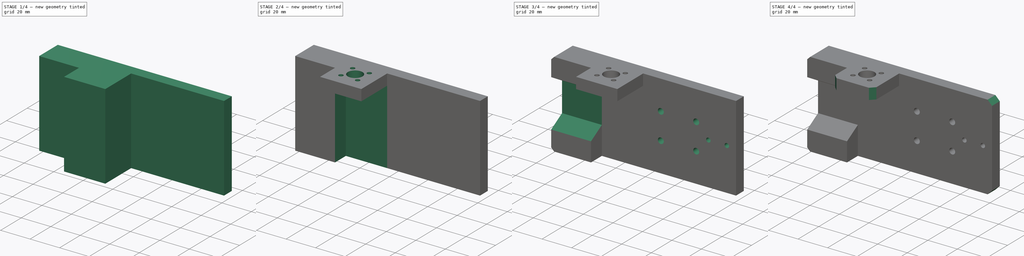
[diagram: build sequence overview — one tinted view per stage of 4, left to right]
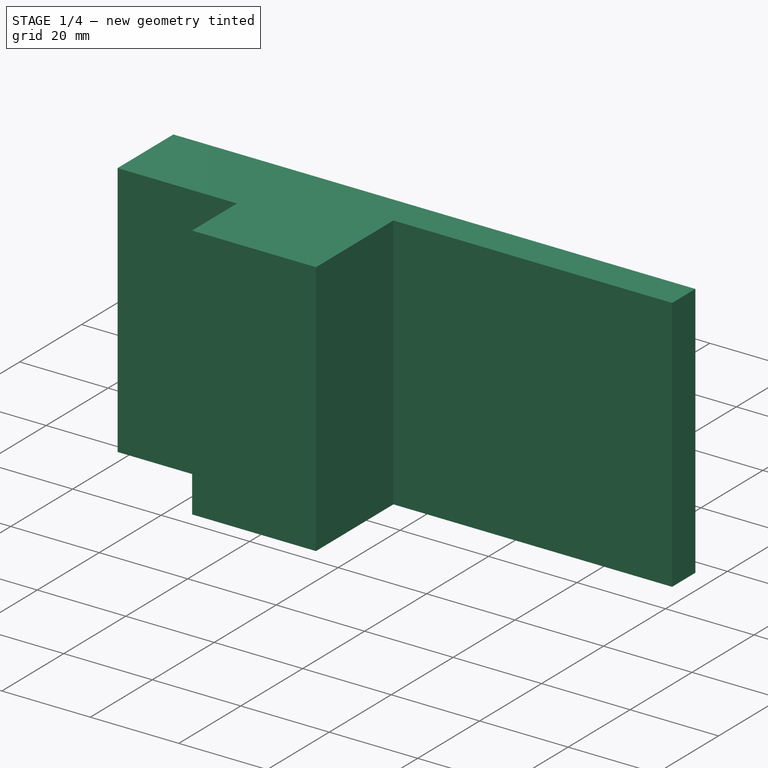
[diagram: stage 1 of 4 — iso view after this stage's code; geometry added in this stage tinted green]
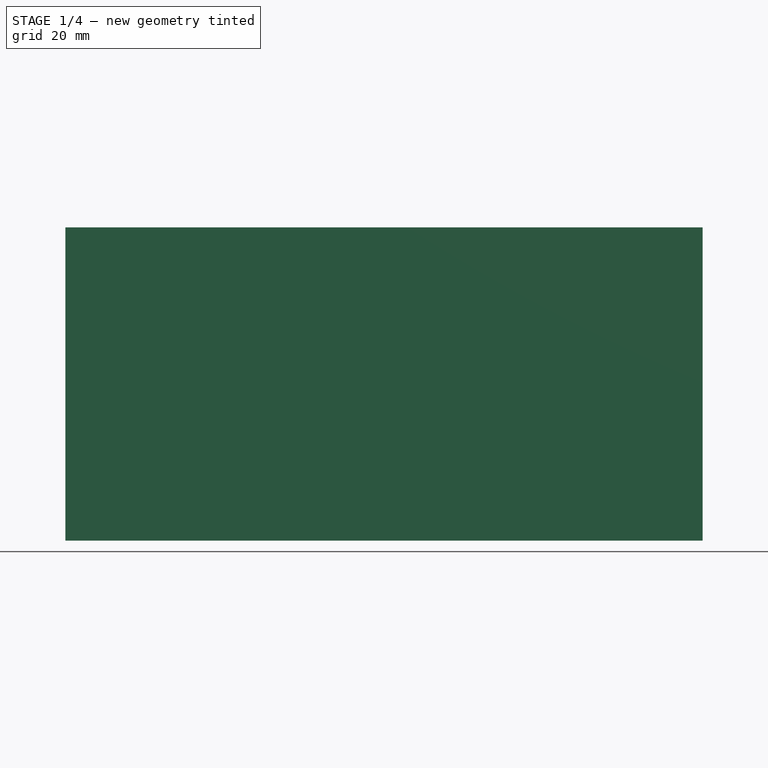
[diagram: stage 1 of 4 — front view after this stage's code; geometry added in this stage tinted green]
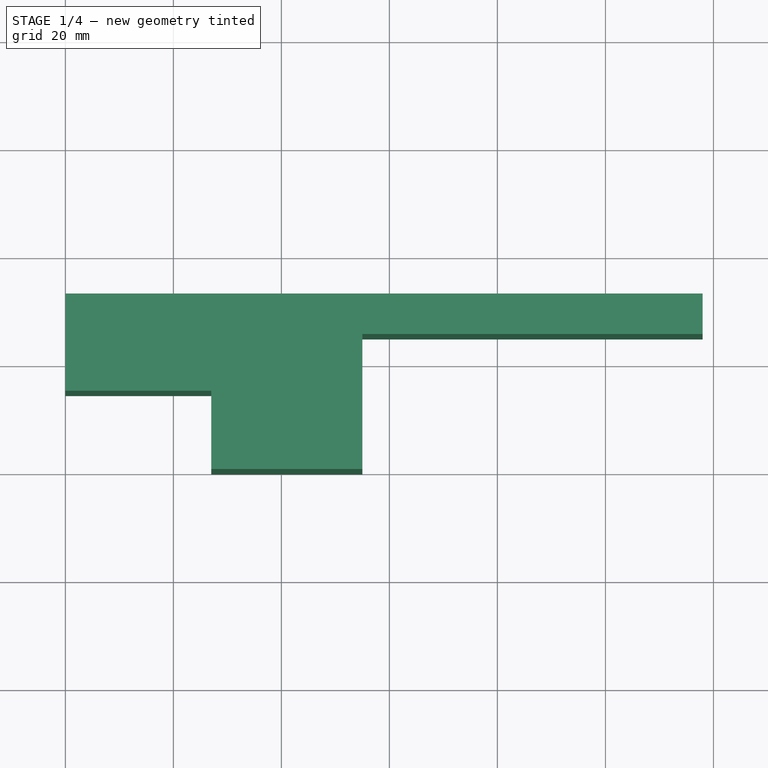
[diagram: stage 1 of 4 — top view after this stage's code; geometry added in this stage tinted green]
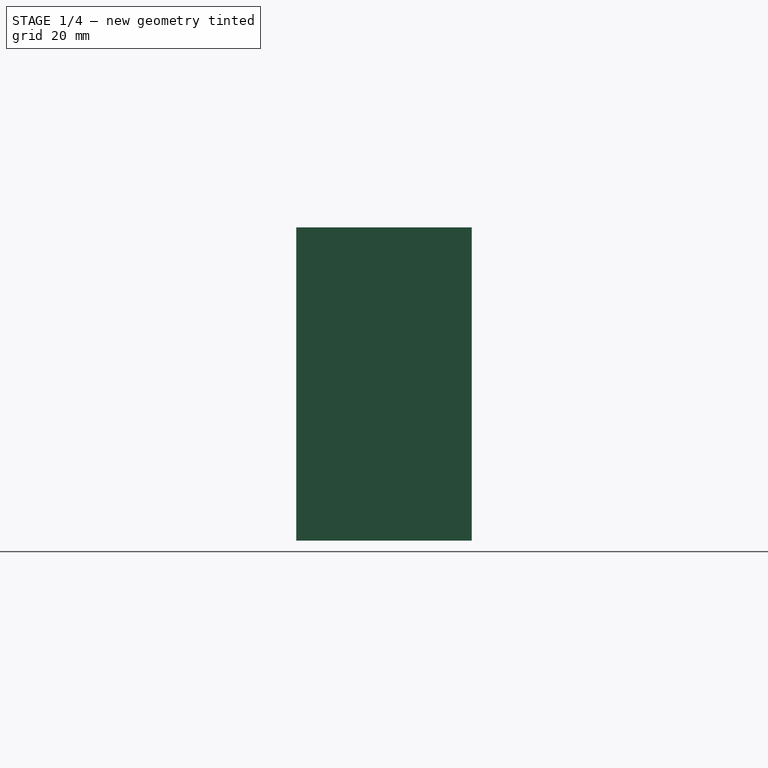
[diagram: stage 1 of 4 — right view after this stage's code; geometry added in this stage tinted green]
FCSTD DOCUMENT  (FreeCAD 0.18R14555 (Git shallow))
Label: bracket-right
License: All rights reserved
LicenseURL: http://en.wikipedia.org/wiki/All_rights_reserved
objects: Sketcher::SketchObject×6, PartDesign::Pocket×5, PartDesign::Chamfer×3, PartDesign::Pad×1, PartDesign::Body×1
note: 22 computed .brp shape members not serialized (recipe doc carries the construction recipe); baked Part::Feature solids carry a one-line shape summary decoded from their .brp

FEATURE [Sketcher::SketchObject] Sketch
  MapMode = 5
  Support = -> [XY_Plane]
  sketch-geometry (34):
    g0: LineSegment [constr] StartX=-15 StartY=27.5 StartZ=0 EndX=25 EndY=27.5 EndZ=0
    g1: LineSegment [constr] StartX=25 StartY=27.5 StartZ=0 EndX=25 EndY=19.5 EndZ=0
    g2: LineSegment [constr] StartX=25 StartY=19.5 StartZ=0 EndX=-15 EndY=19.5 EndZ=0
    g3: LineSegment [constr] StartX=-15 StartY=19.5 StartZ=0 EndX=-15 EndY=27.5 EndZ=0
    g4: LineSegment [constr] StartX=62 StartY=25 StartZ=0 EndX=96 EndY=25 EndZ=0
    g5: LineSegment [constr] StartX=96 StartY=25 StartZ=0 EndX=96 EndY=3 EndZ=0
    g6: LineSegment [constr] StartX=96 StartY=3 StartZ=0 EndX=62 EndY=3 EndZ=0
    g7: LineSegment [constr] StartX=62 StartY=3 StartZ=0 EndX=62 EndY=25 EndZ=0
    g8: LineSegment [constr] StartX=30 StartY=25 StartZ=0 EndX=52 EndY=25 EndZ=0
    g9: LineSegment [constr] StartX=52 StartY=25 StartZ=0 EndX=52 EndY=3 EndZ=0
    g10: LineSegment [constr] StartX=52 StartY=3 StartZ=0 EndX=30 EndY=3 EndZ=0
    g11: LineSegment [constr] StartX=30 StartY=3 StartZ=0 EndX=30 EndY=25 EndZ=0
    g12: LineSegment [constr] StartX=96 StartY=57.5 StartZ=0 EndX=115 EndY=57.5 EndZ=0
    g13: LineSegment [constr] StartX=115 StartY=57.5 StartZ=0 EndX=115 EndY=32.5 EndZ=0
    g14: LineSegment [constr] StartX=115 StartY=32.5 StartZ=0 EndX=96 EndY=32.5 EndZ=0
    g15: LineSegment [constr] StartX=96 StartY=32.5 StartZ=0 EndX=96 EndY=57.5 EndZ=0
    g16: LineSegment StartX=0 StartY=32.5 StartZ=0 EndX=0 EndY=14.5 EndZ=0
    g17: LineSegment StartX=0 StartY=14.5 StartZ=0 EndX=27 EndY=14.5 EndZ=0
    g18: LineSegment StartX=27 StartY=14.5 StartZ=0 EndX=27 EndY=0 EndZ=0
    g19: LineSegment StartX=27 StartY=0 StartZ=0 EndX=55 EndY=0 EndZ=0
    g20: LineSegment StartX=55 StartY=0 StartZ=0 EndX=55 EndY=25 EndZ=0
    g21: LineSegment StartX=55 StartY=25 StartZ=0 EndX=118 EndY=25 EndZ=0
    g22: LineSegment StartX=118 StartY=25 StartZ=0 EndX=118 EndY=32.5 EndZ=0
    g23: LineSegment StartX=118 StartY=32.5 StartZ=0 EndX=0 EndY=32.5 EndZ=0
    g24: LineSegment [constr] StartX=30 StartY=25 StartZ=0 EndX=52 EndY=3 EndZ=0
    g25: LineSegment [constr] StartX=30 StartY=3 StartZ=0 EndX=52 EndY=25 EndZ=0
    g26: LineSegment [constr] StartX=62 StartY=25 StartZ=0 EndX=96 EndY=3 EndZ=0
    g27: LineSegment [constr] StartX=96 StartY=25 StartZ=0 EndX=62 EndY=3 EndZ=0
    g28: LineSegment [constr] StartX=79 StartY=14 StartZ=0 EndX=41 EndY=14 EndZ=0
    g29: LineSegment [constr] StartX=55 StartY=0 StartZ=0 EndX=52 EndY=3 EndZ=0
    g30: LineSegment [constr] StartX=27 StartY=0 StartZ=0 EndX=30 EndY=3 EndZ=0
    g31: LineSegment [constr] StartX=0 StartY=14.5 StartZ=0 EndX=0 EndY=0 EndZ=0
    g32: LineSegment [constr] StartX=27 StartY=0 StartZ=0 EndX=0 EndY=0 EndZ=0
    g33: LineSegment [constr] StartX=96 StartY=25 StartZ=0 EndX=96 EndY=32.5 EndZ=0
  constraints (94):
    c: Coincident(g0,g1)
    c: Coincident(g1,g2)
    c: Coincident(g2,g3)
    c: Coincident(g3,g0)
    c: Horizontal(g0)
    c: Horizontal(g2)
    c: Vertical(g1)
    c: Vertical(g3)
    c: DistanceY(g3,g3) = 8
    c: DistanceX(g0,g0) = 40
    c: Coincident(g4,g5)
    c: Coincident(g5,g6)
    c: Coincident(g6,g7)
    c: Coincident(g7,g4)
    c: Horizontal(g4)
    c: Horizontal(g6)
    c: Vertical(g5)
    c: Vertical(g7)
    c: DistanceY(g7,g7) = 22
    c: DistanceX(g4,g4) = 34
    c: Coincident(g8,g9)
    c: Coincident(g9,g10)
    c: Coincident(g10,g11)
    c: Coincident(g11,g8)
    c: Horizontal(g8)
    c: Horizontal(g10)
    c: Vertical(g9)
    c: Vertical(g11)
    c: Equal(g11,g10)
    c: DistanceX(g10,g10) = 22
    c: Coincident(g12,g13)
    c: Coincident(g13,g14)
    c: Coincident(g14,g15)
    c: Coincident(g15,g12)
    c: Horizontal(g12)
    c: Horizontal(g14)
    c: Vertical(g13)
    c: Vertical(g15)
    c: DistanceY(g13,g13) = 25
    c: Vertical(g16)
    c: Coincident(g16,g17)
    c: Horizontal(g17)
    c: Coincident(g17,g18)
    c: Vertical(g18)
    c: Coincident(g18,g19)
    c: Horizontal(g19)
    c: Coincident(g19,g20)
    c: Vertical(g20)
    c: Coincident(g20,g21)
    c: Horizontal(g21)
    c: Coincident(g21,g22)
    c: Vertical(g22)
    c: Coincident(g22,g23)
    c: Coincident(g23,g16)
    c: Horizontal(g23)
    c: DistanceX(g16,g0) = 25
    c: DistanceX(g0,g8) = 5
    c: Coincident(g24,g8)
    c: Coincident(g24,g9)
    c: Coincident(g25,g10)
    c: Coincident(g25,g8)
    c: Coincident(g26,g4)
    c: Coincident(g26,g5)
    c: Coincident(g27,g4)
    c: Coincident(g27,g6)
    c: PointOnObject(g28,g27)
    c: PointOnObject(g28,g25)
    c: Horizontal(g28)
    c: PointOnObject(g28,g24)
    c: PointOnObject(g28,g26)
    c: PointOnObject(g4,g21)
    c: Coincident(g29,g19)
    c: Coincident(g29,g9)
    c: Coincident(g30,g18)
    c: Coincident(g30,g10)
    c: Equal(g30,g29)
    c: DistanceX(g9,g19) = 3
    c: DistanceY(g19,g9) = 3
    c: DistanceX(g28,g28) = 38
    c: DistanceY(g16,g1) = 5
    c: DistanceY(g0,g16) = 5
    c: DistanceY(g22,g22) = 7.5
    c: Coincident(g31,g16)
    c: Vertical(g31)
    c: Coincident(g32,g18)
    c: Coincident(g32,g31)
    c: Horizontal(g32)
    c: Coincident(g31,g-1)
    c: Coincident(g33,g4)
    c: Coincident(g33,g14)
    c: Vertical(g33)
    c: PointOnObject(g14,g23)
    c: DistanceX(g13,g22) = 3
    c: DistanceX(g12,g12) = 19
FEATURE [PartDesign::Pad] Pad
  Length = 58
  Length2 = 100
  Profile = -> Sketch
  Type = 0
FEATURE [Sketcher::SketchObject] Sketch001
  ExternalGeometry = -> [Pad]
  MapMode = 5
  Placement = pos=(0,0,0) rot=(0.57735,-0.57735,-0.57735;2.0944rad)
  Support = -> [Pad]
  sketch-geometry (6):
    g0: Circle CenterX=-23.5 CenterY=49 CenterZ=0 NormalX=0 NormalY=0 NormalZ=1 AngleXU=0 Radius=4
    g1: Circle CenterX=-23.5 CenterY=9 CenterZ=0 NormalX=0 NormalY=0 NormalZ=1 AngleXU=0 Radius=4
    g2: LineSegment [constr] StartX=-32.5 StartY=0 StartZ=0 EndX=-23.5 EndY=9 EndZ=0
    g3: LineSegment [constr] StartX=-23.5 StartY=9 StartZ=0 EndX=-14.5 EndY=0 EndZ=0
    g4: LineSegment [constr] StartX=-23.5 StartY=9 StartZ=0 EndX=-23.5 EndY=49 EndZ=0
    g5: LineSegment [constr] StartX=-23.5 StartY=49 StartZ=0 EndX=-32.5 EndY=58 EndZ=0
  constraints (14):
    c: Coincident(g2,g-3)
    c: Coincident(g2,g1)
    c: Coincident(g3,g1)
    c: Coincident(g3,g-4)
    c: Coincident(g4,g1)
    c: Coincident(g4,g0)
    c: Coincident(g5,g0)
    c: Coincident(g5,g-3)
    c: Equal(g5,g2)
    c: Equal(g2,g3)
    c: Vertical(g4)
    c: Equal(g0,g1)
    c: DistanceY(g4,g4) = 40
    c: Radius(g0) = 4
FEATURE [PartDesign::Pocket] Pocket
  BaseFeature = -> Pad
  Length = 25
  Length2 = 100
  Profile = -> Sketch001
  Type = 0
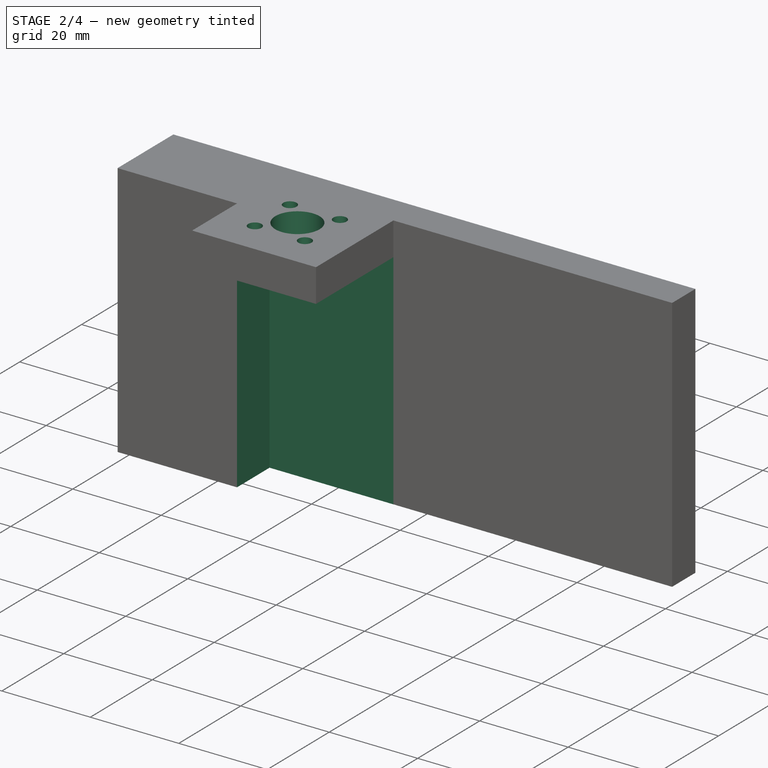
[diagram: stage 2 of 4 — iso view after this stage's code; geometry added in this stage tinted green]
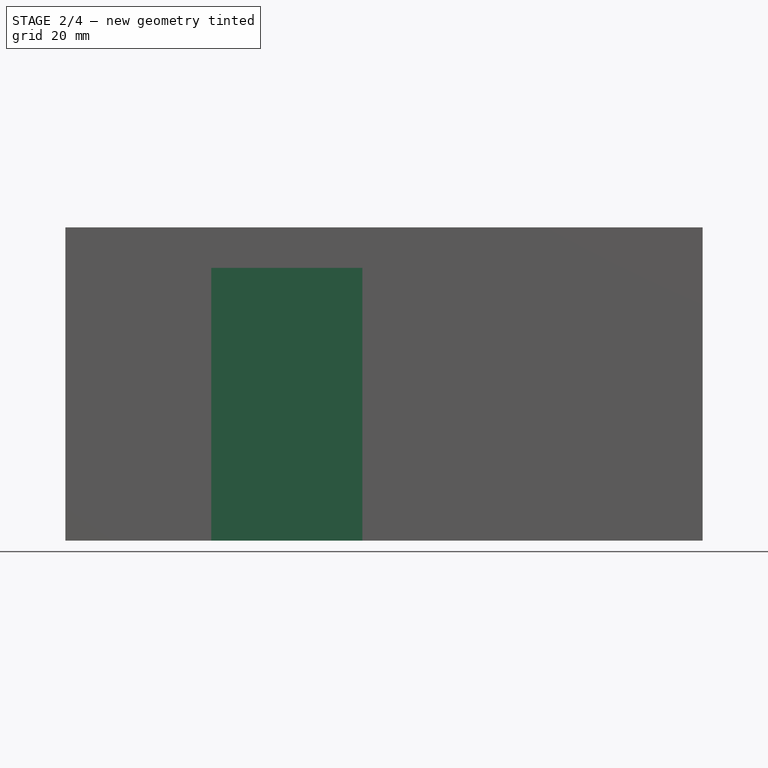
[diagram: stage 2 of 4 — front view after this stage's code; geometry added in this stage tinted green]
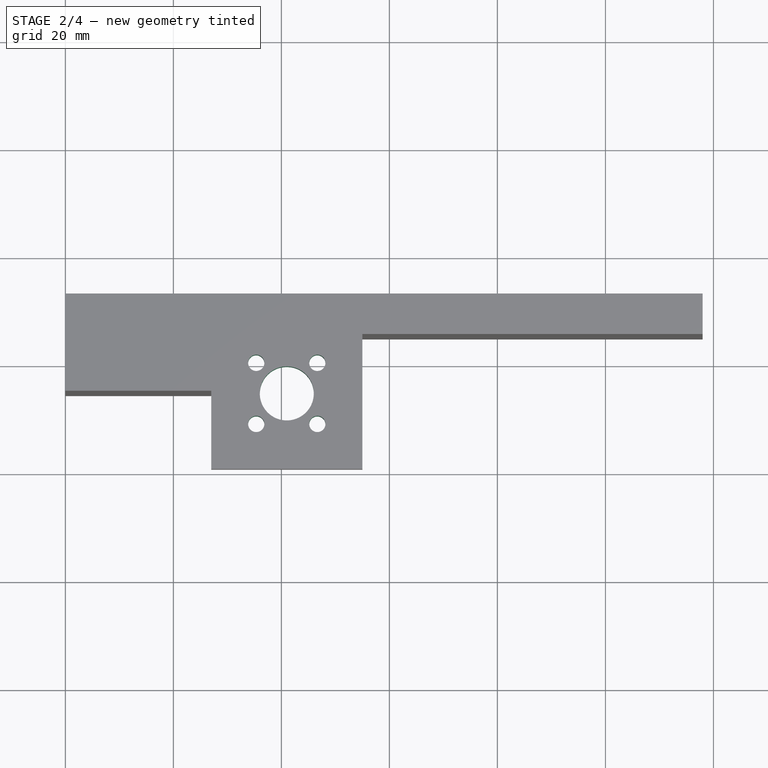
[diagram: stage 2 of 4 — top view after this stage's code; geometry added in this stage tinted green]
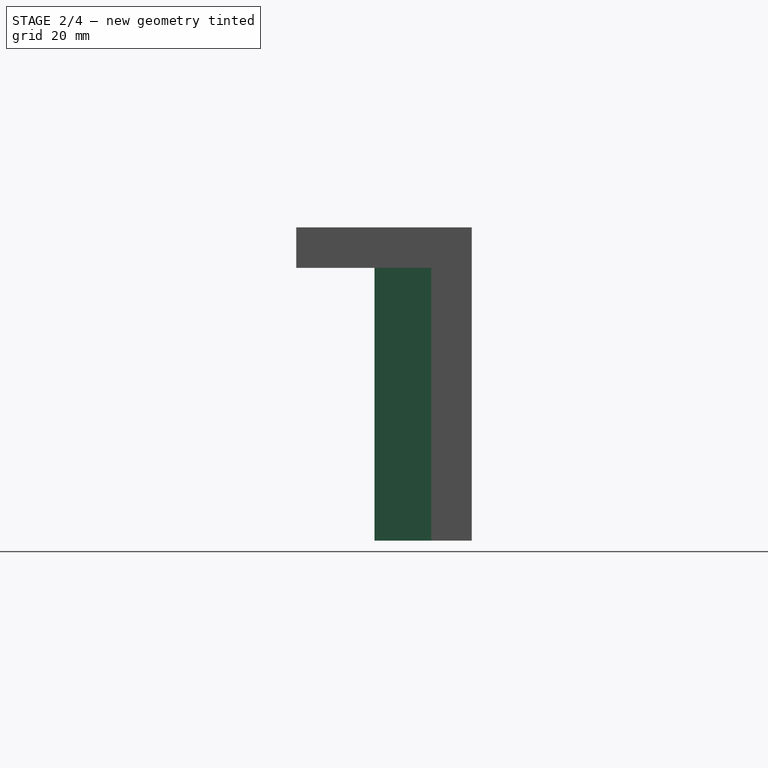
[diagram: stage 2 of 4 — right view after this stage's code; geometry added in this stage tinted green]
FEATURE [Sketcher::SketchObject] Sketch002
  ExternalGeometry = -> [Pocket]
  MapMode = 5
  Placement = pos=(0,0,0) rot=(1,0,0;3.14159rad)
  Support = -> [Pocket]
  sketch-geometry (4):
    g0: LineSegment StartX=27 StartY=0 StartZ=0 EndX=55 EndY=0 EndZ=0
    g1: LineSegment StartX=55 StartY=0 StartZ=0 EndX=55 EndY=-25 EndZ=0
    g2: LineSegment StartX=55 StartY=-25 StartZ=0 EndX=27 EndY=-25 EndZ=0
    g3: LineSegment StartX=27 StartY=-25 StartZ=0 EndX=27 EndY=0 EndZ=0
  constraints (10):
    c: Coincident(g0,g1)
    c: Coincident(g1,g2)
    c: Coincident(g2,g3)
    c: Coincident(g3,g0)
    c: Horizontal(g0)
    c: Horizontal(g2)
    c: Vertical(g1)
    c: Vertical(g3)
    c: Coincident(g0,g-4)
    c: Coincident(g1,g-3)
FEATURE [PartDesign::Pocket] Pocket001
  BaseFeature = -> Pocket
  Length = 50.5
  Length2 = 100
  Profile = -> Sketch002
  Type = 0
FEATURE [Sketcher::SketchObject] Sketch003
  ExternalGeometry = -> [Pocket001]
  MapMode = 5
  Placement = pos=(0,0,58) rot=(0,0,1;0rad)
  Support = -> [Pocket001]
  sketch-geometry (11):
    g0: Circle CenterX=41 CenterY=14 CenterZ=0 NormalX=0 NormalY=0 NormalZ=1 AngleXU=0 Radius=5
    g1: Circle [constr] CenterX=41 CenterY=14 CenterZ=0 NormalX=0 NormalY=0 NormalZ=1 AngleXU=0 Radius=8
    g2: LineSegment [constr] StartX=35.3431 StartY=8.34315 StartZ=0 EndX=35.3431 EndY=19.6569 EndZ=0
    g3: LineSegment [constr] StartX=35.3431 StartY=19.6569 StartZ=0 EndX=46.6569 EndY=19.6569 EndZ=0
    g4: LineSegment [constr] StartX=46.6569 StartY=19.6569 StartZ=0 EndX=46.6569 EndY=8.34315 EndZ=0
    g5: Circle CenterX=35.3431 CenterY=19.6569 CenterZ=0 NormalX=0 NormalY=0 NormalZ=1 AngleXU=0 Radius=1.5
    g6: Circle CenterX=46.6569 CenterY=19.6569 CenterZ=0 NormalX=0 NormalY=0 NormalZ=1 AngleXU=0 Radius=1.5
    g7: Circle CenterX=46.6569 CenterY=8.34315 CenterZ=0 NormalX=0 NormalY=0 NormalZ=1 AngleXU=0 Radius=1.5
    g8: Circle CenterX=35.3431 CenterY=8.34315 CenterZ=0 NormalX=0 NormalY=0 NormalZ=1 AngleXU=0 Radius=1.5
    g9: LineSegment [constr] StartX=27 StartY=0 StartZ=0 EndX=41 EndY=14 EndZ=0
    g10: LineSegment [constr] StartX=41 StartY=14 StartZ=0 EndX=55 EndY=-1.8e-15 EndZ=0
  constraints (27):
    c: Coincident(g1,g0)
    c: Radius(g0) = 5
    c: Radius(g1) = 8
    c: PointOnObject(g2,g1)
    c: PointOnObject(g2,g1)
    c: Vertical(g2)
    c: Coincident(g3,g2)
    c: PointOnObject(g3,g1)
    c: Horizontal(g3)
    c: Coincident(g4,g3)
    c: PointOnObject(g4,g1)
    c: Equal(g2,g3)
    c: Equal(g3,g4)
    c: Coincident(g6,g3)
    c: Coincident(g7,g4)
    c: Coincident(g8,g2)
    c: Equal(g8,g5)
    c: Equal(g5,g6)
    c: Equal(g6,g7)
    c: Radius(g5) = 1.5
    c: Coincident(g5,g2)
    c: Coincident(g9,g-3)
    c: Coincident(g9,g0)
    c: Coincident(g10,g0)
    c: Coincident(g10,g-4)
    c: Equal(g9,g10)
    c: DistanceY(g9,g0) = 14
FEATURE [PartDesign::Pocket] Pocket002
  BaseFeature = -> Pocket001
  Length = 5
  Length2 = 100
  Profile = -> Sketch003
  Type = 1
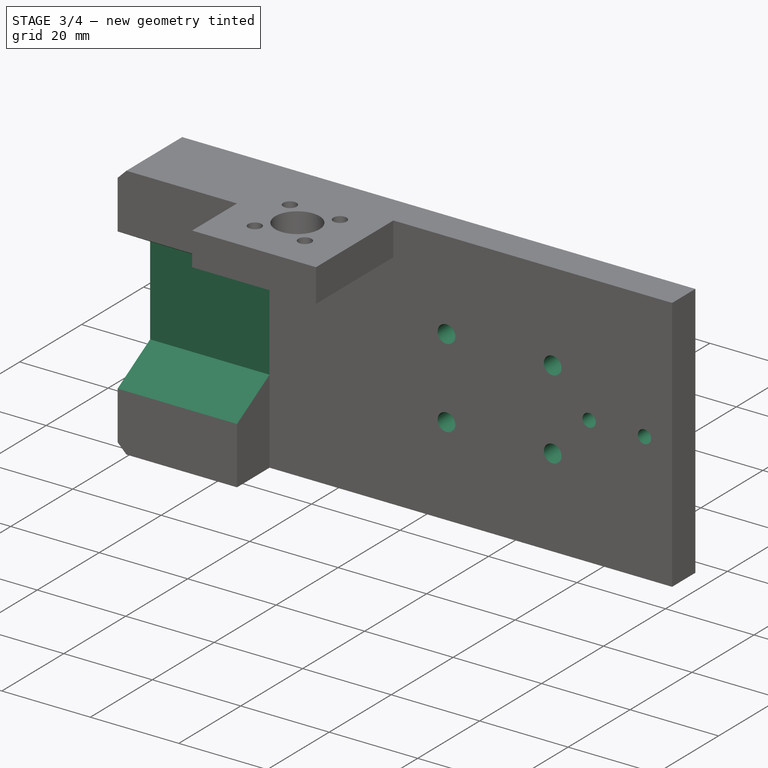
[diagram: stage 3 of 4 — iso view after this stage's code; geometry added in this stage tinted green]
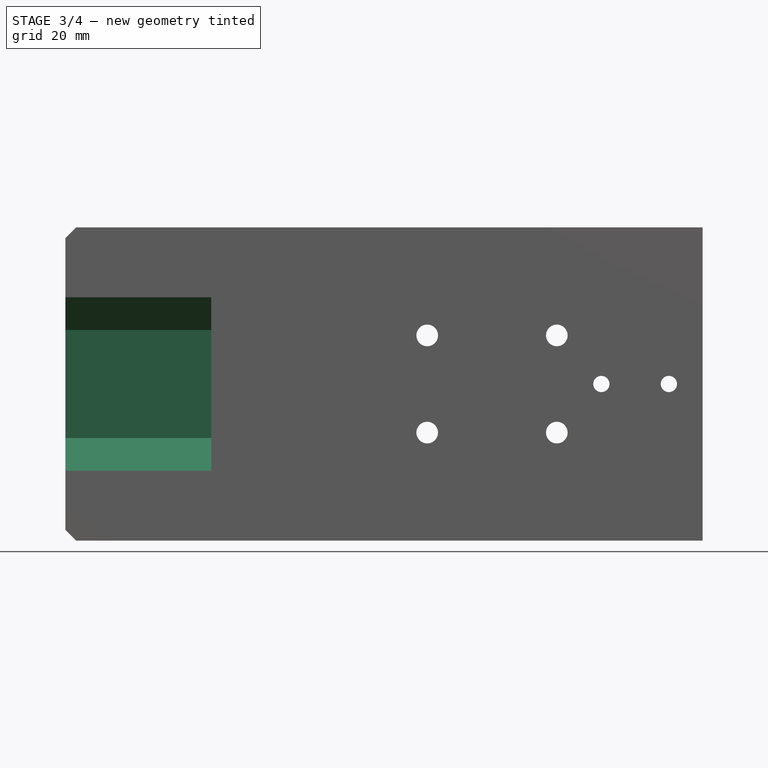
[diagram: stage 3 of 4 — front view after this stage's code; geometry added in this stage tinted green]
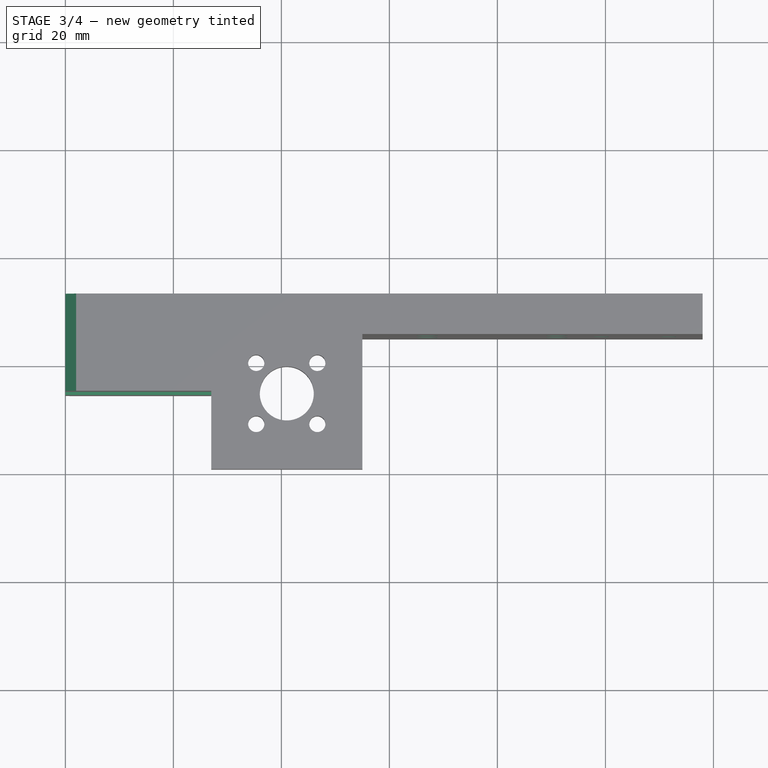
[diagram: stage 3 of 4 — top view after this stage's code; geometry added in this stage tinted green]
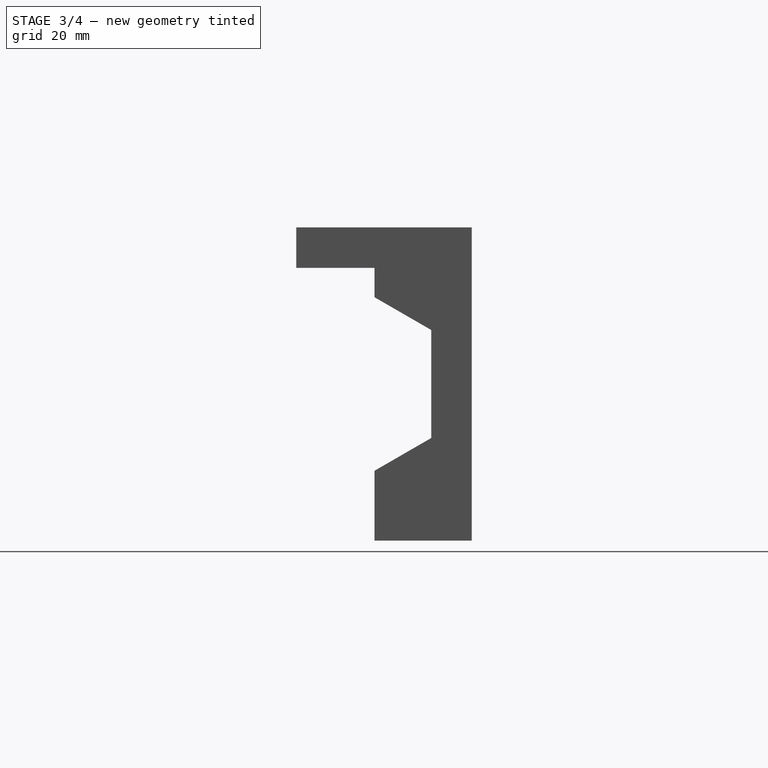
[diagram: stage 3 of 4 — right view after this stage's code; geometry added in this stage tinted green]
FEATURE [Sketcher::SketchObject] Sketch004
  ExternalGeometry = -> [Pocket002]
  MapMode = 5
  Placement = pos=(0,0,0) rot=(0.57735,-0.57735,-0.57735;2.0944rad)
  Support = -> [Pocket002]
  sketch-geometry (6):
    g0: LineSegment StartX=-14.5 StartY=45.0622 StartZ=0 EndX=-14.5 EndY=12.9378 EndZ=0
    g1: LineSegment StartX=-14.5 StartY=12.9378 StartZ=0 EndX=-25 EndY=19 EndZ=0
    g2: LineSegment StartX=-25 StartY=19 StartZ=0 EndX=-25 EndY=39 EndZ=0
    g3: LineSegment StartX=-25 StartY=39 StartZ=0 EndX=-14.5 EndY=45.0622 EndZ=0
    g4: LineSegment [constr] StartX=-14.5 StartY=45.0622 StartZ=0 EndX=-32.5 EndY=58 EndZ=0
    g5: LineSegment [constr] StartX=-14.5 StartY=12.9378 StartZ=0 EndX=-32.5 EndY=1.8e-15 EndZ=0
  constraints (16):
    c: Vertical(g0)
    c: Coincident(g0,g1)
    c: Coincident(g1,g2)
    c: Vertical(g2)
    c: Coincident(g2,g3)
    c: Coincident(g3,g0)
    c: Equal(g3,g1)
    c: DistanceY(g2,g2) = 20
    c: Coincident(g4,g0)
    c: Coincident(g4,g-4)
    c: Coincident(g5,g0)
    c: Coincident(g5,g-4)
    c: Equal(g5,g4)
    c: PointOnObject(g0,g-3)
    c: Angle(g2,g3) = 2.0944
    c: DistanceX(g4,g2) = 7.5
FEATURE [PartDesign::Pocket] Pocket003
  BaseFeature = -> Pocket002
  Length = 0
  Length2 = 100
  Profile = -> Sketch004
  Type = 3
  UpToFace = -> Pocket002 [Face11]
FEATURE [Sketcher::SketchObject] Sketch005
  ExternalGeometry = -> [Pocket003]
  MapMode = 5
  Placement = pos=(0,25,0) rot=(1,0,0;1.5708rad)
  Support = -> [Pocket003]
  sketch-geometry (35):
    g0: LineSegment [constr] StartX=27 StartY=58 StartZ=0 EndX=55 EndY=50.5 EndZ=0
    g1: LineSegment [constr] StartX=55 StartY=58 StartZ=0 EndX=27 EndY=50.5 EndZ=0
    g2: GeomPoint X=41 Y=54.25 Z=0
    g3: LineSegment [constr] StartX=62 StartY=44 StartZ=0 EndX=96 EndY=44 EndZ=0
    g4: LineSegment [constr] StartX=96 StartY=44 StartZ=0 EndX=96 EndY=14 EndZ=0
    g5: LineSegment [constr] StartX=96 StartY=14 StartZ=0 EndX=62 EndY=14 EndZ=0
    g6: LineSegment [constr] StartX=62 StartY=14 StartZ=0 EndX=62 EndY=44 EndZ=0
    g7: LineSegment [constr] StartX=62 StartY=44 StartZ=0 EndX=96 EndY=14 EndZ=0
    g8: LineSegment [constr] StartX=62 StartY=14 StartZ=0 EndX=96 EndY=44 EndZ=0
    g9: GeomPoint X=79 Y=29 Z=0
    g10: LineSegment [constr] StartX=62 StartY=44 StartZ=0 EndX=55 EndY=58 EndZ=0
    g11: LineSegment [constr] StartX=55 StartY=0 StartZ=0 EndX=62 EndY=14 EndZ=0
    g12: Circle CenterX=67 CenterY=38 CenterZ=0 NormalX=0 NormalY=0 NormalZ=1 AngleXU=0 Radius=2
    g13: Circle CenterX=91 CenterY=38 CenterZ=0 NormalX=0 NormalY=0 NormalZ=1 AngleXU=0 Radius=2
    g14: Circle CenterX=91 CenterY=20 CenterZ=0 NormalX=0 NormalY=0 NormalZ=1 AngleXU=0 Radius=2
    g15: Circle CenterX=67 CenterY=20 CenterZ=0 NormalX=0 NormalY=0 NormalZ=1 AngleXU=0 Radius=2
    g16: LineSegment [constr] StartX=67 StartY=20 StartZ=0 EndX=67 EndY=38 EndZ=0
    g17: LineSegment [constr] StartX=67 StartY=38 StartZ=0 EndX=91 EndY=38 EndZ=0
    g18: LineSegment [constr] StartX=91 StartY=38 StartZ=0 EndX=91 EndY=20 EndZ=0
    g19: LineSegment [constr] StartX=67 StartY=20 StartZ=0 EndX=91 EndY=20 EndZ=0
    g20: LineSegment [constr] StartX=67 StartY=38 StartZ=0 EndX=62 EndY=44 EndZ=0
    g21: LineSegment [constr] StartX=67 StartY=20 StartZ=0 EndX=62 EndY=14 EndZ=0
    g22: LineSegment [constr] StartX=91 StartY=38 StartZ=0 EndX=96 EndY=44 EndZ=0
    g23: LineSegment [constr] StartX=96 StartY=41.5 StartZ=0 EndX=115 EndY=41.5 EndZ=0
    g24: LineSegment [constr] StartX=115 StartY=41.5 StartZ=0 EndX=115 EndY=16.5 EndZ=0
    g25: LineSegment [constr] StartX=115 StartY=16.5 StartZ=0 EndX=96 EndY=16.5 EndZ=0
    g26: LineSegment [constr] StartX=96 StartY=16.5 StartZ=0 EndX=96 EndY=41.5 EndZ=0
    g27: LineSegment [constr] StartX=96 StartY=44 StartZ=0 EndX=115 EndY=41.5 EndZ=0
    g28: LineSegment [constr] StartX=96 StartY=14 StartZ=0 EndX=115 EndY=16.5 EndZ=0
    g29: Circle CenterX=99.25 CenterY=29 CenterZ=0 NormalX=0 NormalY=0 NormalZ=1 AngleXU=0 Radius=1.5
    g30: Circle CenterX=111.75 CenterY=29 CenterZ=0 NormalX=0 NormalY=0 NormalZ=1 AngleXU=0 Radius=1.5
    g31: LineSegment [constr] StartX=99.25 StartY=29 StartZ=0 EndX=111.75 EndY=29 EndZ=0
    g32: LineSegment [constr] StartX=96 StartY=41.5 StartZ=0 EndX=99.25 EndY=29 EndZ=0
    g33: LineSegment [constr] StartX=111.75 StartY=29 StartZ=0 EndX=115 EndY=41.5 EndZ=0
    g34: LineSegment [constr] StartX=111.75 StartY=29 StartZ=0 EndX=115 EndY=16.5 EndZ=0
  constraints (84):
    c: Coincident(g0,g-4)
    c: Coincident(g0,g-3)
    c: Coincident(g1,g-3)
    c: Coincident(g1,g-4)
    c: PointOnObject(g2,g0)
    c: PointOnObject(g2,g1)
    c: Coincident(g3,g4)
    c: Coincident(g4,g5)
    c: Coincident(g5,g6)
    c: Coincident(g6,g3)
    c: Horizontal(g3)
    c: Horizontal(g5)
    c: Vertical(g4)
    c: Vertical(g6)
    c: DistanceX(g3,g3) = 34
    c: DistanceY(g6,g6) = 30
    c: Coincident(g7,g3)
    c: Coincident(g7,g4)
    c: Coincident(g8,g5)
    c: Coincident(g8,g3)
    c: PointOnObject(g9,g7)
    c: PointOnObject(g9,g8)
    c: DistanceX(g2,g9) = 38
    c: Coincident(g10,g3)
    c: Coincident(g10,g1)
    c: Coincident(g11,g-5)
    c: Coincident(g11,g5)
    c: Equal(g11,g10)
    c: Coincident(g16,g15)
    c: Coincident(g16,g12)
    c: Coincident(g17,g12)
    c: Horizontal(g17)
    c: Coincident(g18,g13)
    c: Coincident(g18,g14)
    c: Coincident(g17,g13)
    c: Vertical(g18)
    c: Vertical(g16)
    c: Coincident(g19,g15)
    c: Coincident(g19,g14)
    c: Horizontal(g19)
    c: DistanceX(g19,g19) = 24
    c: DistanceY(g18,g18) = 18
    c: Equal(g12,g13)
    c: Equal(g13,g15)
    c: Equal(g15,g14)
    c: Radius(g12) = 2
    c: Coincident(g20,g12)
    c: Coincident(g20,g3)
    c: Coincident(g21,g15)
    c: Coincident(g21,g5)
    c: Coincident(g22,g13)
    c: Coincident(g22,g3)
    c: Equal(g20,g21)
    c: Equal(g21,g22)
    c: Coincident(g23,g24)
    c: Coincident(g24,g25)
    c: Coincident(g25,g26)
    c: Coincident(g26,g23)
    c: Horizontal(g23)
    c: Horizontal(g25)
    c: Vertical(g24)
    c: Vertical(g26)
    c: DistanceX(g23,g23) = 19
    c: PointOnObject(g23,g4)
    c: DistanceY(g24,g24) = 25
    c: Coincident(g27,g3)
    c: Coincident(g27,g23)
    c: Coincident(g28,g4)
    c: Coincident(g28,g24)
    c: Equal(g27,g28)
    c: Coincident(g31,g29)
    c: Coincident(g31,g30)
    c: Horizontal(g31)
    c: Coincident(g32,g23)
    c: Coincident(g32,g29)
    c: Coincident(g33,g30)
    c: Coincident(g33,g23)
    c: Coincident(g34,g30)
    c: Coincident(g34,g24)
    c: Equal(g33,g34)
    c: Equal(g34,g32)
    c: Equal(g29,g30)
    c: Radius(g29) = 1.5
    c: DistanceX(g31,g31) = 12.5
FEATURE [PartDesign::Pocket] Pocket004
  BaseFeature = -> Pocket003
  Length = 0
  Length2 = 100
  Profile = -> Sketch005
  Type = 1
FEATURE [PartDesign::Chamfer] Chamfer
  Base = -> Pocket004 [Edge7,Edge1]
  BaseFeature = -> Pocket004
  Size = 2
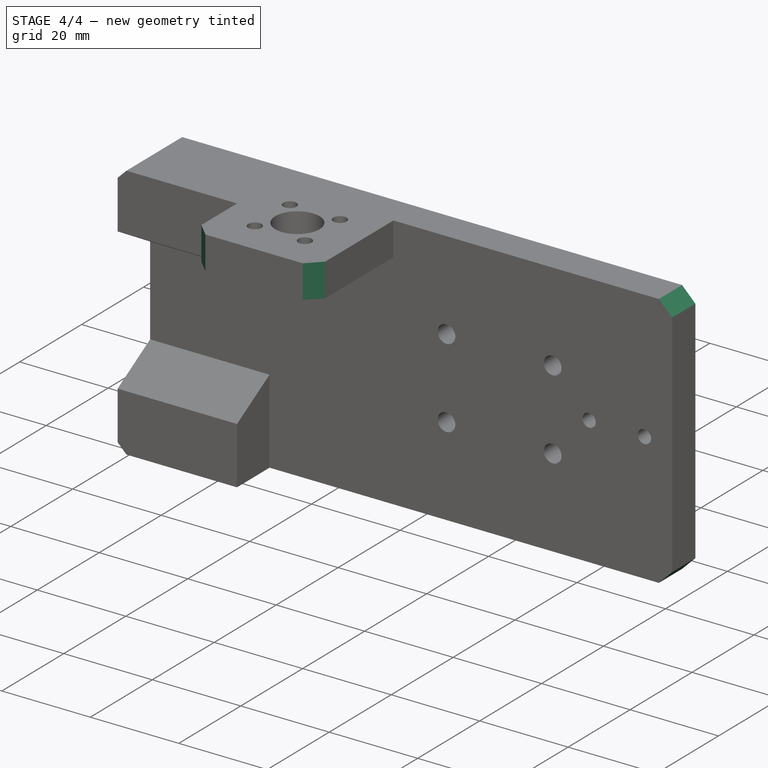
[diagram: stage 4 of 4 — iso view after this stage's code; geometry added in this stage tinted green]
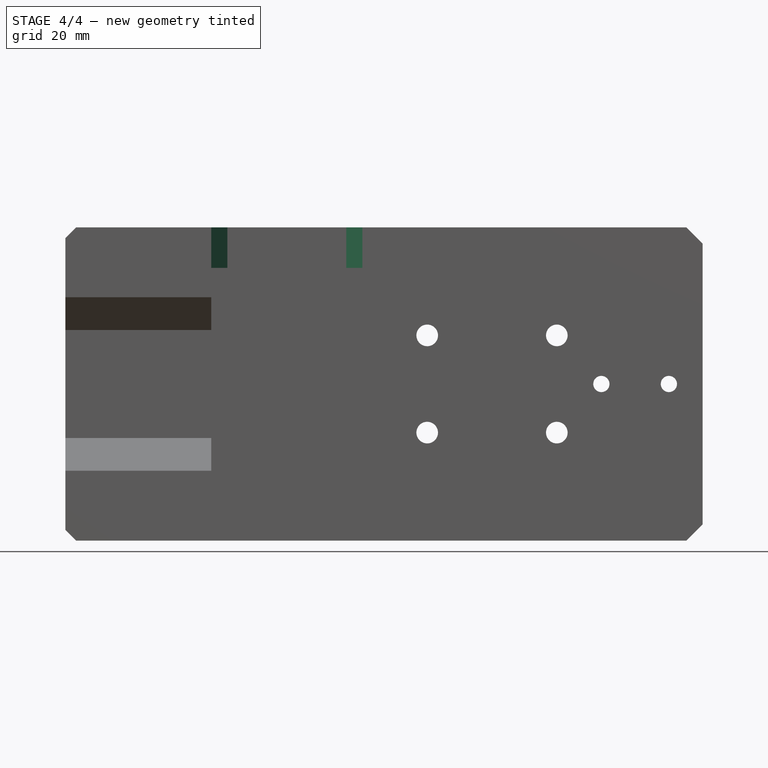
[diagram: stage 4 of 4 — front view after this stage's code; geometry added in this stage tinted green]
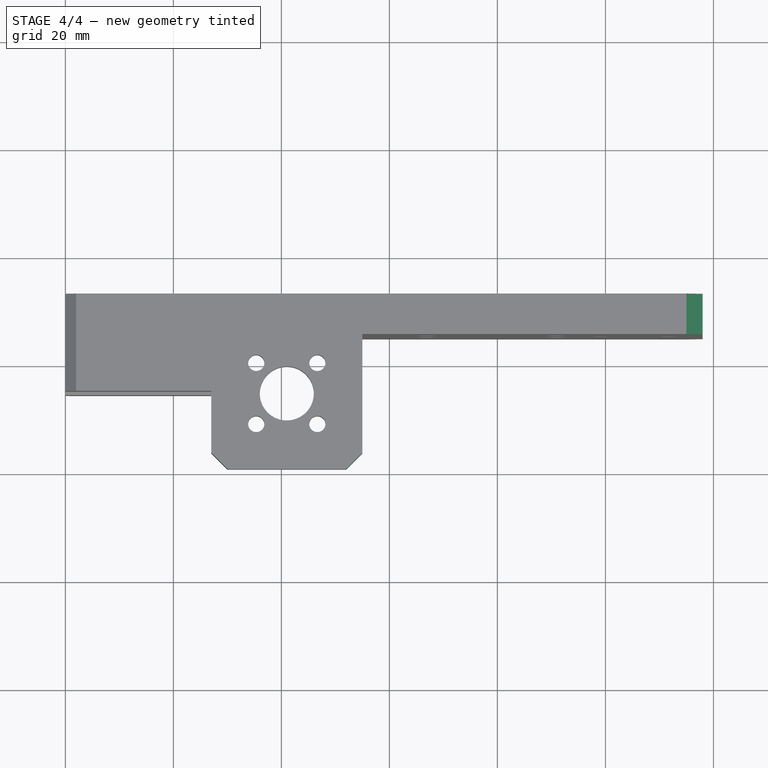
[diagram: stage 4 of 4 — top view after this stage's code; geometry added in this stage tinted green]
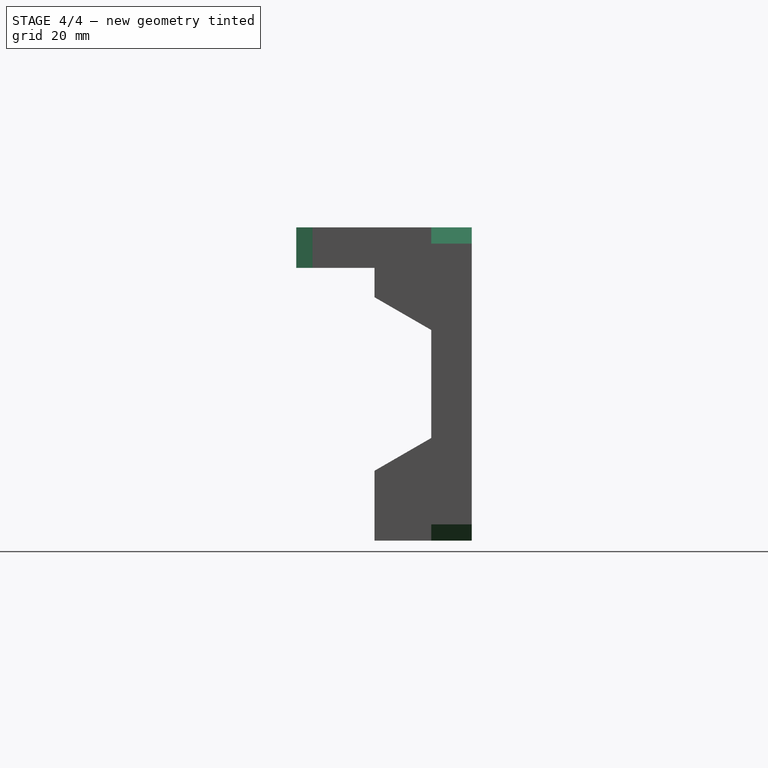
[diagram: stage 4 of 4 — right view after this stage's code; geometry added in this stage tinted green]
FEATURE [PartDesign::Chamfer] Chamfer001
  Base = -> Chamfer [Edge75,Edge78]
  BaseFeature = -> Chamfer
  Size = 3
FEATURE [PartDesign::Chamfer] Chamfer002
  Base = -> Chamfer001 [Edge44,Edge9]
  BaseFeature = -> Chamfer001
  Size = 3
FEATURE [PartDesign::Body] Body  label="bracket-right"
  Group = -> [Sketch,Pad,Sketch001,Pocket,Sketch002,Pocket001,Sketch003,Pocket002,Sketch004,Pocket003,Sketch005,Pocket004,Chamfer,Chamfer001,Chamfer002]
  Origin = -> Origin
  Tip = -> Chamfer002
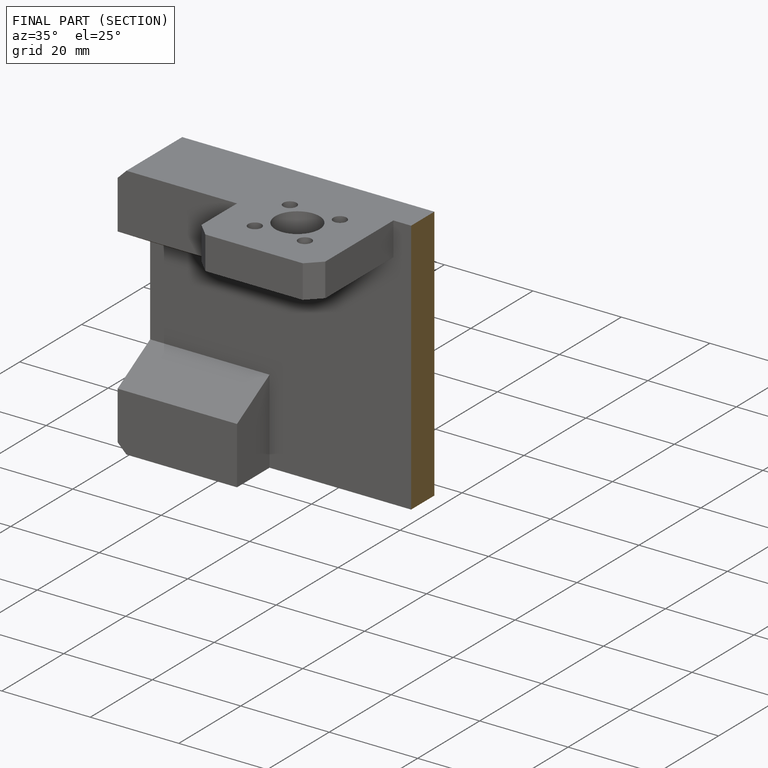
[diagram: finished part — half-section view (interior)]
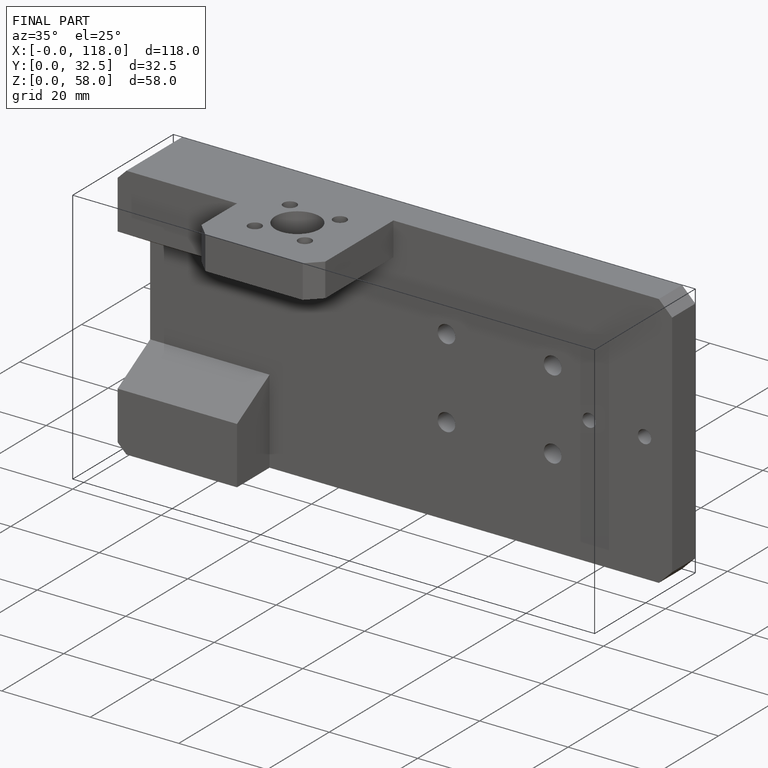
[diagram: finished part — iso view with bounding-box wireframe]
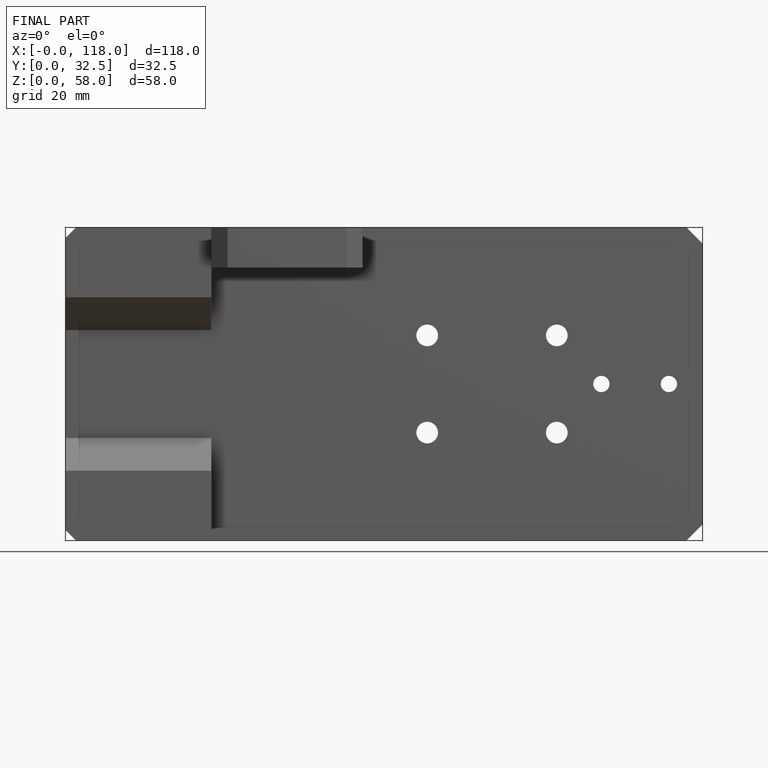
[diagram: finished part — front view with bounding-box wireframe]
